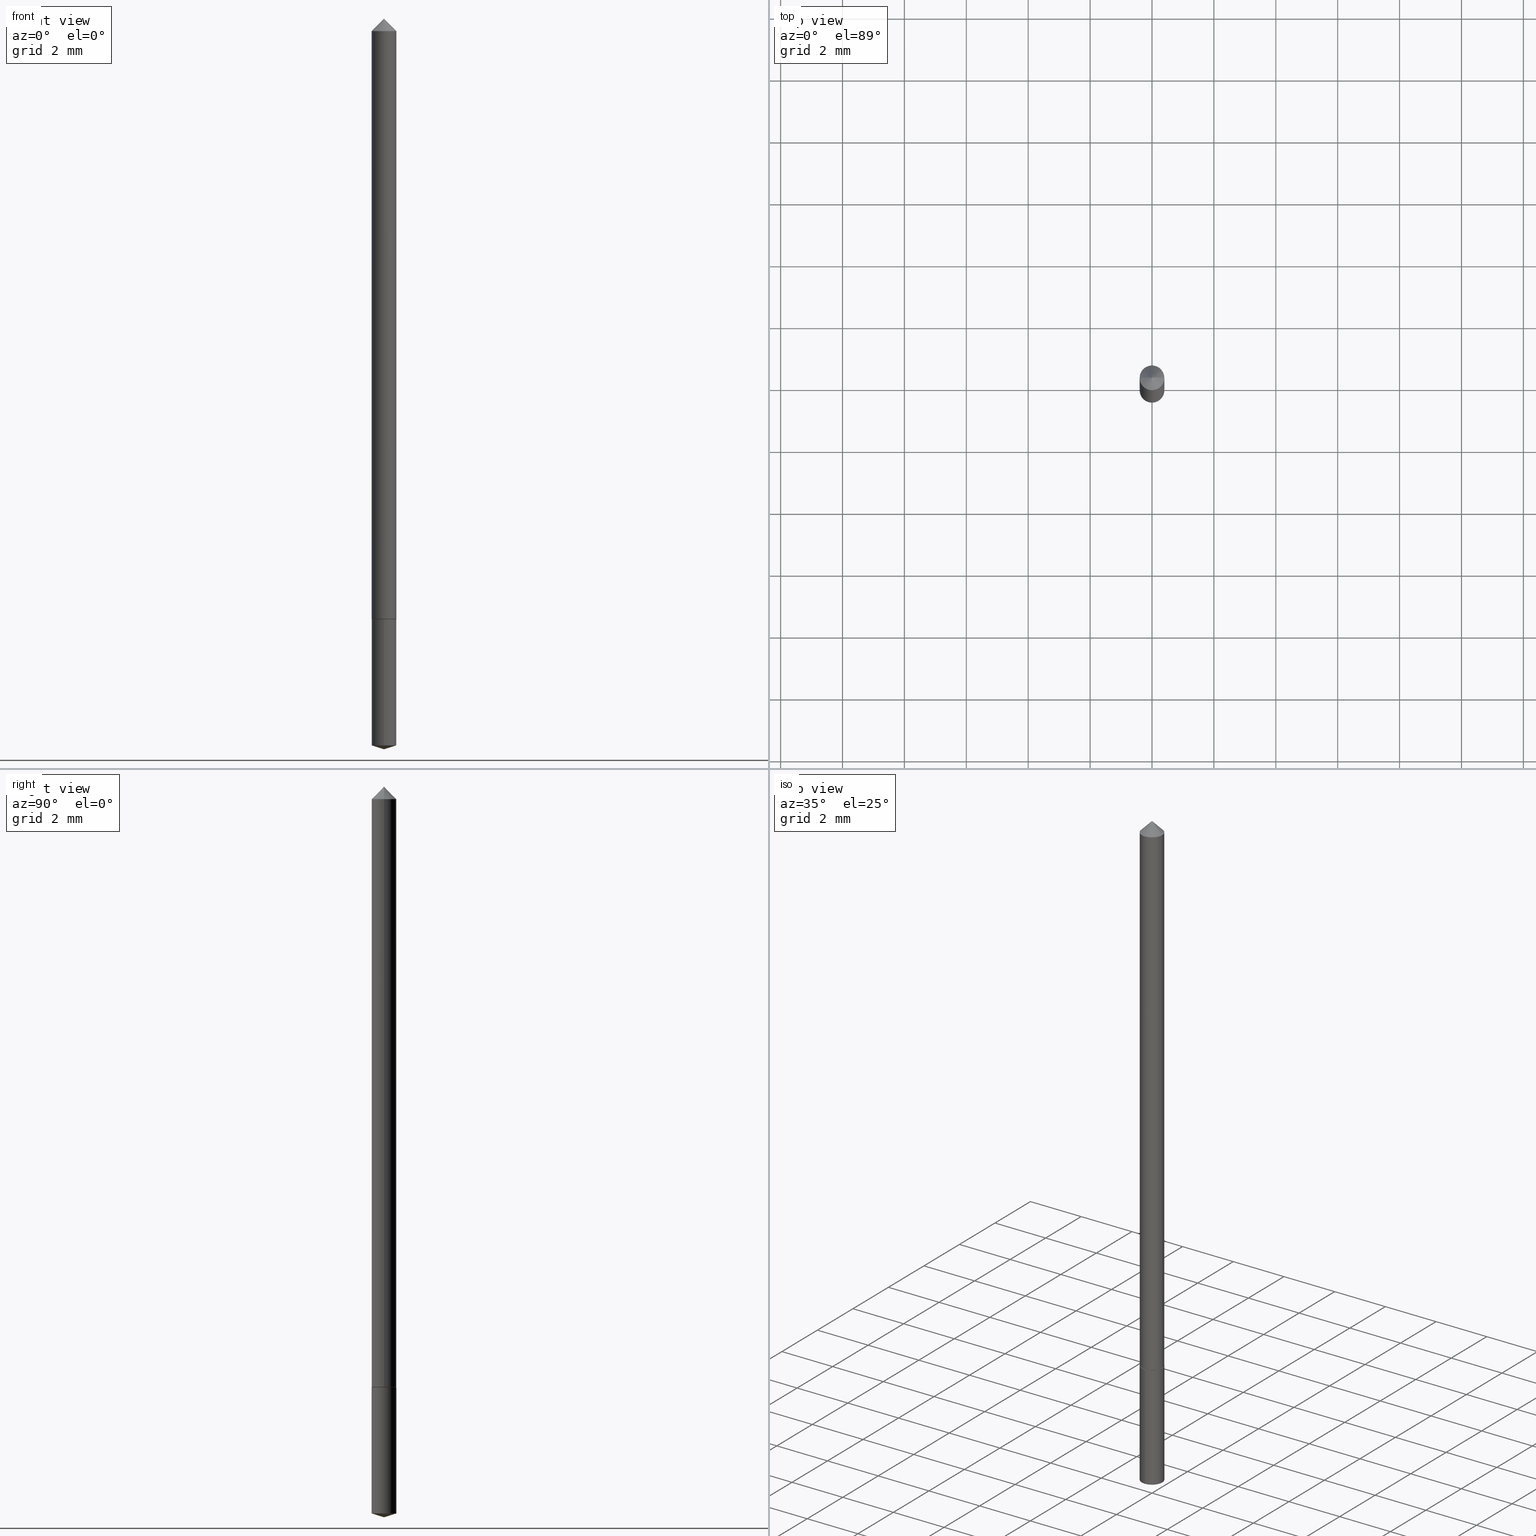
[diagram: canonical four-view strip — front | top / right | iso, engineering-drawing reading convention]
A machine part, canonical four-view strip (front | top / right | iso — engineering-drawing reading convention). The complete STEP part file that produces these views, byte-faithful:
ISO-10303-21;
HEADER;
FILE_DESCRIPTION (( 'STEP AP203' ),
    '1' );
FILE_NAME ('68649.STEP',
    '2024-04-23T13:23:03',
    ( '' ),
    ( '' ),
    'SwSTEP 2.0',
    'SolidWorks 2023',
    '' );
FILE_SCHEMA (( 'CONFIG_CONTROL_DESIGN' ));
ENDSEC;

DATA;
#1 = PERSON_AND_ORGANIZATION_ROLE ( 'classification_officer' ) ;
#2 = ORIENTED_EDGE ( 'NONE', *, *, #65, .T. ) ;
#3 = ORIENTED_EDGE ( 'NONE', *, *, #207, .F. ) ;
#4 = EDGE_CURVE ( 'NONE', #20, #313, #311, .T. ) ;
#5 = AXIS2_PLACEMENT_3D ( 'NONE', #350, #182, #95 ) ;
#6 = ORIENTED_EDGE ( 'NONE', *, *, #93, .F. ) ;
#7 = ORIENTED_EDGE ( 'NONE', *, *, #65, .F. ) ;
#8 = APPROVAL_ROLE ( '' ) ;
#9 = PRODUCT ( '68649', '68649', '', ( #69 ) ) ;
#10 = EDGE_LOOP ( 'NONE', ( #121, #169, #284, #290 ) ) ;
#11 = APPROVAL_PERSON_ORGANIZATION ( #262, #193, #308 ) ;
#12 = ADVANCED_FACE ( 'NONE', ( #204 ), #191, .T. ) ;
#13 = DIRECTION ( 'NONE',  ( 1.000000000000000000, 0.000000000000000000, 0.000000000000000000 ) ) ;
#14 = DIRECTION ( 'NONE',  ( -2.445468806185136877E-29, 3.491481338843145188E-15, 1.000000000000000000 ) ) ;
#15 = ADVANCED_FACE ( 'NONE', ( #66 ), #113, .T. ) ;
#16 = DESIGN_CONTEXT ( 'detailed design', #96, 'design' ) ;
#17 = VECTOR ( 'NONE', #106, 39.37007874015748143 ) ;
#18 = DIRECTION ( 'NONE',  ( -2.445242383942665067E-29, 3.491805588381518378E-15, 1.000000000000000000 ) ) ;
#19 = CARTESIAN_POINT ( 'NONE',  ( -1.099816621735396379E-16, -0.01575000000000272016, -0.7794999999999999707 ) ) ;
#20 = VERTEX_POINT ( 'NONE', #116 ) ;
#21 = AXIS2_PLACEMENT_3D ( 'NONE', #362, #214, #78 ) ;
#22 = LINE ( 'NONE', #360, #174 ) ;
#23 = AXIS2_PLACEMENT_3D ( 'NONE', #71, #272, #239 ) ;
#24 = DIRECTION ( 'NONE',  ( -6.982962677686265922E-15, -1.000000000000000000, 0.000000000000000000 ) ) ;
#25 = CARTESIAN_POINT ( 'NONE',  ( 1.119104808822387803E-16, 0.01574999999999672148, -0.9399340440751560166 ) ) ;
#26 = PERSON_AND_ORGANIZATION_ROLE ( 'design_supplier' ) ;
#27 = CC_DESIGN_PERSON_AND_ORGANIZATION_ASSIGNMENT ( #163, #310, ( #111 ) ) ;
#28 = AXIS2_PLACEMENT_3D ( 'NONE', #358, #304, #157 ) ;
#29 = CC_DESIGN_APPROVAL ( #252, ( #111 ) ) ;
#30 = SECURITY_CLASSIFICATION_LEVEL ( 'unclassified' ) ;
#31 = APPROVAL_DATE_TIME ( #118, #252 ) ;
#32 = VERTEX_POINT ( 'NONE', #227 ) ;
#33 = ADVANCED_FACE ( 'NONE', ( #232 ), #90, .F. ) ;
#34 = COORDINATED_UNIVERSAL_TIME_OFFSET ( 5, 0, .BEHIND. ) ;
#35 = CARTESIAN_POINT ( 'NONE',  ( -0.01575000000000000358, 8.728703347097300785E-19, -0.03125000000000020123 ) ) ;
#36 = VECTOR ( 'NONE', #192, 39.37007874015748143 ) ;
#37 = CARTESIAN_POINT ( 'NONE',  ( 1.905020200018221761E-29, -2.719863962958810634E-15, -0.7790000000000000258 ) ) ;
#38 = AXIS2_PLACEMENT_3D ( 'NONE', #275, #247, #221 ) ;
#39 = ORIENTED_EDGE ( 'NONE', *, *, #289, .F. ) ;
#40 = CARTESIAN_POINT ( 'NONE',  ( 7.642090019328600035E-31, -1.091087918388489897E-16, -0.03125000000000020123 ) ) ;
#41 = CARTESIAN_POINT ( 'NONE',  ( 0.000000000000000000, 0.000000000000000000, 0.000000000000000000 ) ) ;
#42 = DIRECTION ( 'NONE',  ( -2.445468806185136597E-29, 3.491481338843145583E-15, 1.000000000000000000 ) ) ;
#43 = CARTESIAN_POINT ( 'NONE',  ( 0.01575000000000005215, -1.099816621735590636E-16, 7.679978421878623957E-31 ) ) ;
#44 = CIRCLE ( 'NONE', #38, 0.01575000000000000011 ) ;
#45 = CYLINDRICAL_SURFACE ( 'NONE', #211, 0.01575000000000000011 ) ;
#46 = ORIENTED_EDGE ( 'NONE', *, *, #218, .T. ) ;
#47 = DIRECTION ( 'NONE',  ( -2.445242383942665067E-29, 3.491805588381518378E-15, 1.000000000000000000 ) ) ;
#48 = DIRECTION ( 'NONE',  ( 6.776566513254257349E-15, 0.9537169507482289310, 0.3007057995042669574 ) ) ;
#49 = ORGANIZATION ( 'UNSPECIFIED', 'UNSPECIFIED', '' ) ;
#50 = LINE ( 'NONE', #162, #203 ) ;
#51 = EDGE_CURVE ( 'NONE', #253, #343, #181, .T. ) ;
#52 = COORDINATED_UNIVERSAL_TIME_OFFSET ( 5, 0, .BEHIND. ) ;
#53 = PERSON_AND_ORGANIZATION ( #254, #49 ) ;
#54 = ADVANCED_FACE ( 'NONE', ( #185 ), #329, .F. ) ;
#55 = DIRECTION ( 'NONE',  ( -2.445468806185136597E-29, 3.491481338843145583E-15, 1.000000000000000000 ) ) ;
#56 = ORIENTED_EDGE ( 'NONE', *, *, #51, .T. ) ;
#57 = COORDINATED_UNIVERSAL_TIME_OFFSET ( 5, 0, .BEHIND. ) ;
#58 = CARTESIAN_POINT ( 'NONE',  ( 1.906242934421314002E-29, -2.721609703628232138E-15, -0.7794999999999999707 ) ) ;
#59 = APPROVAL_DATE_TIME ( #285, #193 ) ;
#60 = ORIENTED_EDGE ( 'NONE', *, *, #355, .F. ) ;
#61 = ORIENTED_EDGE ( 'NONE', *, *, #93, .T. ) ;
#62 = PRODUCT_DEFINITION_SHAPE ( 'NONE', 'NONE',  #111 ) ;
#63 = VERTEX_POINT ( 'NONE', #104 ) ;
#64 = ORIENTED_EDGE ( 'NONE', *, *, #332, .T. ) ;
#65 = EDGE_CURVE ( 'NONE', #140, #313, #94, .T. ) ;
#66 = FACE_OUTER_BOUND ( 'NONE', #347, .T. ) ;
#67 = ADVANCED_BREP_SHAPE_REPRESENTATION ( '68649', ( #186, #189, #306 ), #108 ) ;
#68 = EDGE_LOOP ( 'NONE', ( #201, #196 ) ) ;
#69 = MECHANICAL_CONTEXT ( 'NONE', #219, 'mechanical' ) ;
#70 = CARTESIAN_POINT ( 'NONE',  ( 1.906242934421314002E-29, -2.721609703628232138E-15, -0.7794999999999999707 ) ) ;
#71 = CARTESIAN_POINT ( 'NONE',  ( 1.906242934421314002E-29, -2.721609703628232138E-15, -0.7794999999999999707 ) ) ;
#72 = PERSON_AND_ORGANIZATION ( #254, #49 ) ;
#73 = AXIS2_PLACEMENT_3D ( 'NONE', #126, #246, #349 ) ;
#74 = CARTESIAN_POINT ( 'NONE',  ( 0.000000000000000000, 0.000000000000000000, 0.000000000000000000 ) ) ;
#75 = CARTESIAN_POINT ( 'NONE',  ( 1.905020200018221761E-29, -2.719863962958810634E-15, -0.7790000000000000258 ) ) ;
#76 =( CONVERSION_BASED_UNIT ( 'INCH', #325 ) LENGTH_UNIT ( ) NAMED_UNIT ( #240 ) );
#77 = LINE ( 'NONE', #43, #335 ) ;
#78 = DIRECTION ( 'NONE',  ( 1.000000000000000000, -6.982962677686266711E-15, 0.000000000000000000 ) ) ;
#79 = CARTESIAN_POINT ( 'NONE',  ( 2.298543058821210983E-29, -3.281814195296508762E-15, -0.9399340440751560166 ) ) ;
#80 = EDGE_CURVE ( 'NONE', #32, #102, #98, .T. ) ;
#81 = CARTESIAN_POINT ( 'NONE',  ( 0.01525000000000006212, -2.828099884462947800E-15, -0.7794999999999999707 ) ) ;
#82 = CARTESIAN_POINT ( 'NONE',  ( -0.01575000000000009726, -2.607953482076594164E-15, -0.7790000000000000258 ) ) ;
#83 = EDGE_CURVE ( 'NONE', #309, #230, #287, .T. ) ;
#84 = CIRCLE ( 'NONE', #228, 0.01575000000000000011 ) ;
#85 = LINE ( 'NONE', #135, #36 ) ;
#86 = CONICAL_SURFACE ( 'NONE', #154, 0.01575000000000009726, 0.7853981633975828380 ) ;
#87 = DATE_AND_TIME ( #305, #353 ) ;
#88 = EDGE_LOOP ( 'NONE', ( #283, #250, #2 ) ) ;
#89 = DATE_AND_TIME ( #170, #330 ) ;
#90 = PLANE ( 'NONE',  #97 ) ;
#91 = PERSON_AND_ORGANIZATION_ROLE ( 'creator' ) ;
#92 = ORIENTED_EDGE ( 'NONE', *, *, #355, .T. ) ;
#93 = EDGE_CURVE ( 'NONE', #343, #253, #145, .T. ) ;
#94 = CIRCLE ( 'NONE', #73, 0.01575000000000000358 ) ;
#95 = DIRECTION ( 'NONE',  ( 1.000000000000000000, -6.982962677686256455E-15, 0.000000000000000000 ) ) ;
#96 = APPLICATION_CONTEXT ( 'configuration controlled 3d designs of mechanical parts and assemblies' ) ;
#97 = AXIS2_PLACEMENT_3D ( 'NONE', #58, #342, #286 ) ;
#98 = LINE ( 'NONE', #241, #130 ) ;
#99 = AXIS2_PLACEMENT_3D ( 'NONE', #354, #215, #208 ) ;
#100 = DIRECTION ( 'NONE',  ( 1.000000000000000000, -6.982962677686266711E-15, 4.876176775795935793E-29 ) ) ;
#101 = CARTESIAN_POINT ( 'NONE',  ( 1.906242934421314002E-29, -2.721609703628232138E-15, -0.7794999999999999707 ) ) ;
#102 = VERTEX_POINT ( 'NONE', #129 ) ;
#103 = ORIENTED_EDGE ( 'NONE', *, *, #80, .T. ) ;
#104 = CARTESIAN_POINT ( 'NONE',  ( 1.119104808822387803E-16, 0.01574999999999728006, -0.7794999999999999707 ) ) ;
#105 = EDGE_CURVE ( 'NONE', #63, #267, #117, .T. ) ;
#106 = DIRECTION ( 'NONE',  ( 0.7071067811866426078, -2.468850131083252997E-15, 0.7071067811864524266 ) ) ;
#107 = FACE_OUTER_BOUND ( 'NONE', #10, .T. ) ;
#108 =( GEOMETRIC_REPRESENTATION_CONTEXT ( 3 ) GLOBAL_UNCERTAINTY_ASSIGNED_CONTEXT ( ( #345 ) ) GLOBAL_UNIT_ASSIGNED_CONTEXT ( ( #76, #179, #351 ) ) REPRESENTATION_CONTEXT ( 'NONE', 'WORKASPACE' ) );
#109 = PRODUCT_RELATED_PRODUCT_CATEGORY ( 'detail', '', ( #9 ) ) ;
#110 = DIRECTION ( 'NONE',  ( 0.7071067811865451302, -7.319954787623248157E-15, -0.7071067811865499042 ) ) ;
#111 = PRODUCT_DEFINITION ( 'UNKNOWN', '', #363, #16 ) ;
#112 = APPROVAL_STATUS ( 'not_yet_approved' ) ;
#113 = CYLINDRICAL_SURFACE ( 'NONE', #339, 0.01575000000000005215 ) ;
#114 = EDGE_CURVE ( 'NONE', #102, #288, #84, .T. ) ;
#115 = APPROVAL_STATUS ( 'not_yet_approved' ) ;
#116 = CARTESIAN_POINT ( 'NONE',  ( 3.753218070327473241E-31, -5.465152481333162299E-17, -0.01550000000000009183 ) ) ;
#117 = CIRCLE ( 'NONE', #303, 0.01575000000000000011 ) ;
#118 = DATE_AND_TIME ( #197, #138 ) ;
#119 = EDGE_LOOP ( 'NONE', ( #46, #64, #6, #205 ) ) ;
#120 = DATE_AND_TIME ( #340, #155 ) ;
#121 = ORIENTED_EDGE ( 'NONE', *, *, #332, .F. ) ;
#122 = ORIENTED_EDGE ( 'NONE', *, *, #4, .T. ) ;
#123 = LINE ( 'NONE', #319, #243 ) ;
#124 = ADVANCED_FACE ( 'NONE', ( #107 ), #86, .T. ) ;
#125 = ORIENTED_EDGE ( 'NONE', *, *, #289, .T. ) ;
#126 = CARTESIAN_POINT ( 'NONE',  ( 7.642090019328600035E-31, -1.091087918388489897E-16, -0.03125000000000020123 ) ) ;
#127 = DIRECTION ( 'NONE',  ( -2.445242383942665067E-29, 3.491805588381518378E-15, 1.000000000000000000 ) ) ;
#128 = AXIS2_PLACEMENT_3D ( 'NONE', #153, #244, #326 ) ;
#129 = CARTESIAN_POINT ( 'NONE',  ( -1.099816621735357305E-16, -0.01575000000000328568, -0.9399340440751560166 ) ) ;
#130 = VECTOR ( 'NONE', #324, 39.37007874015748143 ) ;
#131 = ORIENTED_EDGE ( 'NONE', *, *, #105, .T. ) ;
#132 = LINE ( 'NONE', #216, #158 ) ;
#133 = FACE_OUTER_BOUND ( 'NONE', #176, .T. ) ;
#134 = CARTESIAN_POINT ( 'NONE',  ( -0.01575000000000009726, -2.607953482076594164E-15, -0.7790000000000000258 ) ) ;
#135 = CARTESIAN_POINT ( 'NONE',  ( -0.01575000000000005215, 1.119104808822161498E-16, -7.747322767151501157E-31 ) ) ;
#136 = DIRECTION ( 'NONE',  ( -2.445242383942665067E-29, 3.491805588381518378E-15, 1.000000000000000000 ) ) ;
#137 = CARTESIAN_POINT ( 'NONE',  ( 1.905020200018221761E-29, -2.719863962958810634E-15, -0.7790000000000000258 ) ) ;
#138 = LOCAL_TIME ( 9, 23, 3.000000000000000000, #279 ) ;
#139 = CALENDAR_DATE ( 2024, 23, 4 ) ;
#140 = VERTEX_POINT ( 'NONE', #235 ) ;
#141 = EDGE_CURVE ( 'NONE', #343, #140, #77, .T. ) ;
#142 = APPROVAL_ROLE ( '' ) ;
#143 = DIRECTION ( 'NONE',  ( 1.000000000000000000, -6.982962677686266711E-15, 4.876176775795935793E-29 ) ) ;
#144 = ORIENTED_EDGE ( 'NONE', *, *, #341, .T. ) ;
#145 = CIRCLE ( 'NONE', #320, 0.01575000000000009726 ) ;
#146 = APPROVAL_PERSON_ORGANIZATION ( #166, #167, #142 ) ;
#147 = CONICAL_SURFACE ( 'NONE', #160, 0.01575000000000000358, 0.7853981633974449483 ) ;
#148 = DIRECTION ( 'NONE',  ( -2.445468806185136597E-29, 3.491481338843145583E-15, 1.000000000000000000 ) ) ;
#149 = DIRECTION ( 'NONE',  ( -0.7071067811865451302, 2.468850131082231817E-15, -0.7071067811865499042 ) ) ;
#150 = ORIENTED_EDGE ( 'NONE', *, *, #141, .T. ) ;
#151 = CARTESIAN_POINT ( 'NONE',  ( -9.395869916986768398E-28, 1.341735066119557652E-13, 38.42517874015748447 ) ) ;
#152 = ADVANCED_FACE ( 'NONE', ( #317 ), #177, .T. ) ;
#153 = CARTESIAN_POINT ( 'NONE',  ( 7.642090019328600035E-31, -1.091087918388489897E-16, -0.03125000000000020123 ) ) ;
#154 = AXIS2_PLACEMENT_3D ( 'NONE', #137, #361, #270 ) ;
#155 = LOCAL_TIME ( 9, 23, 3.000000000000000000, #52 ) ;
#156 = FACE_OUTER_BOUND ( 'NONE', #307, .T. ) ;
#157 = DIRECTION ( 'NONE',  ( -6.982962677686265922E-15, -1.000000000000000000, 3.500519750498701277E-15 ) ) ;
#158 = VECTOR ( 'NONE', #48, 39.37007874015748854 ) ;
#159 = SECURITY_CLASSIFICATION ( '', '', #30 ) ;
#160 = AXIS2_PLACEMENT_3D ( 'NONE', #40, #268, #212 ) ;
#161 = DIRECTION ( 'NONE',  ( -2.445242383942665067E-29, 3.491805588381518378E-15, 1.000000000000000000 ) ) ;
#162 = CARTESIAN_POINT ( 'NONE',  ( -1.099816621735396379E-16, -0.01575000000000272016, -0.7794999999999999707 ) ) ;
#163 = PERSON_AND_ORGANIZATION ( #254, #49 ) ;
#164 = ADVANCED_FACE ( 'NONE', ( #238 ), #147, .T. ) ;
#165 = VECTOR ( 'NONE', #300, 39.37007874015748143 ) ;
#166 = PERSON_AND_ORGANIZATION ( #254, #49 ) ;
#167 = APPROVAL ( #112, 'UNSPECIFIED' ) ;
#168 = EDGE_LOOP ( 'NONE', ( #172, #131 ) ) ;
#169 = ORIENTED_EDGE ( 'NONE', *, *, #83, .T. ) ;
#170 = CALENDAR_DATE ( 2024, 23, 4 ) ;
#171 = ADVANCED_FACE ( 'NONE', ( #209 ), #180, .T. ) ;
#172 = ORIENTED_EDGE ( 'NONE', *, *, #282, .T. ) ;
#173 = CLOSED_SHELL ( 'NONE', ( #226, #171, #12, #33, #124, #15, #164 ) ) ;
#174 = VECTOR ( 'NONE', #110, 39.37007874015748143 ) ;
#175 = AXIS2_PLACEMENT_3D ( 'NONE', #74, #42, #100 ) ;
#176 = EDGE_LOOP ( 'NONE', ( #3, #336, #144, #356 ) ) ;
#177 = CYLINDRICAL_SURFACE ( 'NONE', #323, 0.01575000000000000011 ) ;
#178 = ORIENTED_EDGE ( 'NONE', *, *, #312, .F. ) ;
#179 =( NAMED_UNIT ( * ) PLANE_ANGLE_UNIT ( ) SI_UNIT ( $, .RADIAN. ) );
#180 = CYLINDRICAL_SURFACE ( 'NONE', #175, 0.01575000000000005215 ) ;
#181 = CIRCLE ( 'NONE', #257, 0.01575000000000009726 ) ;
#182 = DIRECTION ( 'NONE',  ( -2.445468806185136597E-29, 3.491481338843145583E-15, 1.000000000000000000 ) ) ;
#183 = DIRECTION ( 'NONE',  ( 1.000000000000000000, -6.982962677686273810E-15, 0.000000000000000000 ) ) ;
#184 =( LENGTH_UNIT ( ) NAMED_UNIT ( * ) SI_UNIT ( $, .METRE. ) );
#185 = FACE_OUTER_BOUND ( 'NONE', #168, .T. ) ;
#186 = MANIFOLD_SOLID_BREP ( 'Body-Move/Copy2[1]', #245 ) ;
#187 = AXIS2_PLACEMENT_3D ( 'NONE', #151, #127, #242 ) ;
#188 = CARTESIAN_POINT ( 'NONE',  ( 1.906242934421314002E-29, -2.721609703628232138E-15, -0.7794999999999999707 ) ) ;
#189 = MANIFOLD_SOLID_BREP ( 'Body-Move/Copy2[2]', #173 ) ;
#190 = CIRCLE ( 'NONE', #5, 0.01525000000000006212 ) ;
#191 = CONICAL_SURFACE ( 'NONE', #277, 0.01575000000000009726, 0.7853981633975828380 ) ;
#192 = DIRECTION ( 'NONE',  ( -2.445468806185136877E-29, 3.491481338843145188E-15, 1.000000000000000000 ) ) ;
#193 = APPROVAL ( #115, 'UNSPECIFIED' ) ;
#194 = DATE_TIME_ROLE ( 'classification_date' ) ;
#195 = DIRECTION ( 'NONE',  ( -2.445468806185136597E-29, 3.491481338843145583E-15, 1.000000000000000000 ) ) ;
#196 = ORIENTED_EDGE ( 'NONE', *, *, #83, .F. ) ;
#197 = CALENDAR_DATE ( 2024, 23, 4 ) ;
#198 = EDGE_LOOP ( 'NONE', ( #318, #224, #269, #260 ) ) ;
#199 = ORIENTED_EDGE ( 'NONE', *, *, #295, .T. ) ;
#200 = DATE_TIME_ROLE ( 'creation_date' ) ;
#201 = ORIENTED_EDGE ( 'NONE', *, *, #218, .F. ) ;
#202 = CONICAL_SURFACE ( 'NONE', #128, 0.01575000000000000358, 0.7853981633974449483 ) ;
#203 = VECTOR ( 'NONE', #136, 39.37007874015748143 ) ;
#204 = FACE_OUTER_BOUND ( 'NONE', #119, .T. ) ;
#205 = ORIENTED_EDGE ( 'NONE', *, *, #265, .F. ) ;
#206 = DIRECTION ( 'NONE',  ( -6.982962677686265922E-15, -1.000000000000000000, 0.000000000000000000 ) ) ;
#207 = EDGE_CURVE ( 'NONE', #288, #63, #123, .T. ) ;
#208 = DIRECTION ( 'NONE',  ( 1.000000000000000000, -6.982962677686256455E-15, 0.000000000000000000 ) ) ;
#209 = FACE_OUTER_BOUND ( 'NONE', #281, .T. ) ;
#210 = PERSON_AND_ORGANIZATION_ROLE ( 'design_owner' ) ;
#211 = AXIS2_PLACEMENT_3D ( 'NONE', #188, #161, #334 ) ;
#212 = DIRECTION ( 'NONE',  ( -1.000000000000000000, 6.982962677686266711E-15, 0.000000000000000000 ) ) ;
#213 = DIRECTION ( 'NONE',  ( -2.445242383942665067E-29, 3.491805588381518378E-15, 1.000000000000000000 ) ) ;
#214 = DIRECTION ( 'NONE',  ( -2.445468806185136597E-29, 3.491481338843145583E-15, 1.000000000000000000 ) ) ;
#215 = DIRECTION ( 'NONE',  ( -2.445468806185136597E-29, 3.491481338843145583E-15, 1.000000000000000000 ) ) ;
#216 = CARTESIAN_POINT ( 'NONE',  ( 2.310865616189023751E-29, -3.298901595431373332E-15, -0.9448999999999999622 ) ) ;
#217 = CARTESIAN_POINT ( 'NONE',  ( -0.01525000000000006212, -2.610602709250705365E-15, -0.7794999999999999707 ) ) ;
#218 = EDGE_CURVE ( 'NONE', #230, #309, #190, .T. ) ;
#219 = APPLICATION_CONTEXT ( 'configuration controlled 3d designs of mechanical parts and assemblies' ) ;
#220 = CARTESIAN_POINT ( 'NONE',  ( -0.01575000000000000358, -1.302575896516612017E-15, -0.03125000000000020123 ) ) ;
#221 = DIRECTION ( 'NONE',  ( -6.982962677686265922E-15, -1.000000000000000000, 0.000000000000000000 ) ) ;
#222 = CIRCLE ( 'NONE', #21, 0.01575000000000000358 ) ;
#223 = CC_DESIGN_PERSON_AND_ORGANIZATION_ASSIGNMENT ( #271, #210, ( #9 ) ) ;
#224 = ORIENTED_EDGE ( 'NONE', *, *, #207, .T. ) ;
#225 = SHAPE_DEFINITION_REPRESENTATION ( #62, #67 ) ;
#226 = ADVANCED_FACE ( 'NONE', ( #296 ), #202, .T. ) ;
#227 = CARTESIAN_POINT ( 'NONE',  ( 2.310509528587424031E-29, -3.299407100461696853E-15, -0.9448999999999999622 ) ) ;
#228 = AXIS2_PLACEMENT_3D ( 'NONE', #79, #47, #24 ) ;
#229 = LOCAL_TIME ( 9, 23, 3.000000000000000000, #337 ) ;
#230 = VERTEX_POINT ( 'NONE', #81 ) ;
#231 = CARTESIAN_POINT ( 'NONE',  ( 0.000000000000000000, 0.000000000000000000, 0.000000000000000000 ) ) ;
#232 = FACE_OUTER_BOUND ( 'NONE', #68, .T. ) ;
#233 = ORIENTED_EDGE ( 'NONE', *, *, #141, .F. ) ;
#234 = EDGE_CURVE ( 'NONE', #288, #102, #44, .T. ) ;
#235 = CARTESIAN_POINT ( 'NONE',  ( 0.01575000000000000358, -2.190904540124077205E-16, -0.03125000000000020123 ) ) ;
#236 = APPLICATION_PROTOCOL_DEFINITION ( 'international standard', 'config_control_design', 1994, #219 ) ;
#237 = CC_DESIGN_PERSON_AND_ORGANIZATION_ASSIGNMENT ( #258, #1, ( #159 ) ) ;
#238 = FACE_OUTER_BOUND ( 'NONE', #294, .T. ) ;
#239 = DIRECTION ( 'NONE',  ( 6.982962677686265922E-15, 1.000000000000000000, -3.491805588381518378E-15 ) ) ;
#240 = DIMENSIONAL_EXPONENTS ( 1.000000000000000000, 0.000000000000000000, 0.000000000000000000, 0.000000000000000000, 0.000000000000000000, 0.000000000000000000, 0.000000000000000000 ) ;
#241 = CARTESIAN_POINT ( 'NONE',  ( 2.310509528587424311E-29, -3.299407100461696064E-15, -0.9448999999999999622 ) ) ;
#242 = DIRECTION ( 'NONE',  ( -6.982962677686265922E-15, -1.000000000000000000, 3.500519750498701277E-15 ) ) ;
#243 = VECTOR ( 'NONE', #348, 39.37007874015748143 ) ;
#244 = DIRECTION ( 'NONE',  ( 2.445468806185136597E-29, -3.491481338843145583E-15, -1.000000000000000000 ) ) ;
#245 = CLOSED_SHELL ( 'NONE', ( #152, #299, #359, #274, #54 ) ) ;
#246 = DIRECTION ( 'NONE',  ( -2.445468806185136597E-29, 3.491481338843145583E-15, 1.000000000000000000 ) ) ;
#247 = DIRECTION ( 'NONE',  ( -2.445242383942665067E-29, 3.491805588381518378E-15, 1.000000000000000000 ) ) ;
#248 = DIRECTION ( 'NONE',  ( -6.982962677686265922E-15, -1.000000000000000000, 0.000000000000000000 ) ) ;
#249 = CC_DESIGN_APPROVAL ( #167, ( #159 ) ) ;
#250 = ORIENTED_EDGE ( 'NONE', *, *, #312, .T. ) ;
#251 = CARTESIAN_POINT ( 'NONE',  ( 1.906242934421314002E-29, -2.721609703628232138E-15, -0.7794999999999999707 ) ) ;
#252 = APPROVAL ( #344, 'UNSPECIFIED' ) ;
#253 = VERTEX_POINT ( 'NONE', #134 ) ;
#254 = PERSON ( 'UNSPECIFIED', 'UNSPECIFIED', 'UNSPECIFIED', ('UNSPECIFIED'), ('UNSPECIFIED'), ('UNSPECIFIED') ) ;
#255 = CARTESIAN_POINT ( 'NONE',  ( 0.01575000000000009726, -2.829845625132370092E-15, -0.7790000000000000258 ) ) ;
#256 = APPROVAL_DATE_TIME ( #87, #167 ) ;
#257 = AXIS2_PLACEMENT_3D ( 'NONE', #37, #148, #263 ) ;
#258 = PERSON_AND_ORGANIZATION ( #254, #49 ) ;
#259 = CARTESIAN_POINT ( 'NONE',  ( 1.905020200018221761E-29, -2.719863962958810634E-15, -0.7790000000000000258 ) ) ;
#260 = ORIENTED_EDGE ( 'NONE', *, *, #341, .F. ) ;
#261 = CC_DESIGN_SECURITY_CLASSIFICATION ( #159, ( #363 ) ) ;
#262 = PERSON_AND_ORGANIZATION ( #254, #49 ) ;
#263 = DIRECTION ( 'NONE',  ( 1.000000000000000000, -6.982962677686273810E-15, 0.000000000000000000 ) ) ;
#264 = ORIENTED_EDGE ( 'NONE', *, *, #295, .F. ) ;
#265 = EDGE_CURVE ( 'NONE', #230, #343, #331, .T. ) ;
#266 = DIRECTION ( 'NONE',  ( 1.000000000000000000, -6.982962677686273810E-15, 0.000000000000000000 ) ) ;
#267 = VERTEX_POINT ( 'NONE', #19 ) ;
#268 = DIRECTION ( 'NONE',  ( 2.445468806185136597E-29, -3.491481338843145583E-15, -1.000000000000000000 ) ) ;
#269 = ORIENTED_EDGE ( 'NONE', *, *, #282, .F. ) ;
#270 = DIRECTION ( 'NONE',  ( 1.000000000000000000, -6.982962677686273810E-15, 0.000000000000000000 ) ) ;
#271 = PERSON_AND_ORGANIZATION ( #254, #49 ) ;
#272 = DIRECTION ( 'NONE',  ( 2.445242383942664787E-29, -3.491805588381518378E-15, -1.000000000000000000 ) ) ;
#273 = VECTOR ( 'NONE', #149, 39.37007874015748143 ) ;
#274 = ADVANCED_FACE ( 'NONE', ( #133 ), #45, .T. ) ;
#275 = CARTESIAN_POINT ( 'NONE',  ( 2.298543058821210983E-29, -3.281814195296508762E-15, -0.9399340440751560166 ) ) ;
#276 = CARTESIAN_POINT ( 'NONE',  ( 0.01575000000000009726, -2.829845625132370092E-15, -0.7790000000000000258 ) ) ;
#277 = AXIS2_PLACEMENT_3D ( 'NONE', #259, #195, #266 ) ;
#278 = CONICAL_SURFACE ( 'NONE', #187, 124.8659371009151755, 1.265363707695891904 ) ;
#279 = COORDINATED_UNIVERSAL_TIME_OFFSET ( 5, 0, .BEHIND. ) ;
#280 = CONICAL_SURFACE ( 'NONE', #28, 124.8659371009151755, 1.265363707695891904 ) ;
#281 = EDGE_LOOP ( 'NONE', ( #61, #199, #7, #233 ) ) ;
#282 = EDGE_CURVE ( 'NONE', #267, #63, #301, .T. ) ;
#283 = ORIENTED_EDGE ( 'NONE', *, *, #4, .F. ) ;
#284 = ORIENTED_EDGE ( 'NONE', *, *, #265, .T. ) ;
#285 = DATE_AND_TIME ( #139, #229 ) ;
#286 = DIRECTION ( 'NONE',  ( 1.000000000000000000, -6.982962677686265922E-15, 4.876176775795935793E-29 ) ) ;
#287 = CIRCLE ( 'NONE', #99, 0.01525000000000006212 ) ;
#288 = VERTEX_POINT ( 'NONE', #25 ) ;
#289 = EDGE_CURVE ( 'NONE', #32, #288, #132, .T. ) ;
#290 = ORIENTED_EDGE ( 'NONE', *, *, #51, .F. ) ;
#291 = DIRECTION ( 'NONE',  ( 0.000000000000000000, 0.000000000000000000, 1.000000000000000000 ) ) ;
#292 = DIRECTION ( 'NONE',  ( -2.445242383942665067E-29, 3.491805588381518378E-15, 1.000000000000000000 ) ) ;
#293 = CC_DESIGN_DATE_AND_TIME_ASSIGNMENT ( #89, #194, ( #159 ) ) ;
#294 = EDGE_LOOP ( 'NONE', ( #178, #122, #92 ) ) ;
#295 = EDGE_CURVE ( 'NONE', #253, #313, #85, .T. ) ;
#296 = FACE_OUTER_BOUND ( 'NONE', #88, .T. ) ;
#297 = DIRECTION ( 'NONE',  ( -6.982962677686265922E-15, -1.000000000000000000, 0.000000000000000000 ) ) ;
#298 = FACE_OUTER_BOUND ( 'NONE', #338, .T. ) ;
#299 = ADVANCED_FACE ( 'NONE', ( #298 ), #280, .T. ) ;
#300 = DIRECTION ( 'NONE',  ( -0.7071067811866426078, 7.493145998870698104E-15, 0.7071067811864524266 ) ) ;
#301 = CIRCLE ( 'NONE', #352, 0.01575000000000000011 ) ;
#302 = CC_DESIGN_APPROVAL ( #193, ( #363 ) ) ;
#303 = AXIS2_PLACEMENT_3D ( 'NONE', #101, #213, #297 ) ;
#304 = DIRECTION ( 'NONE',  ( -2.445242383942665067E-29, 3.491805588381518378E-15, 1.000000000000000000 ) ) ;
#305 = CALENDAR_DATE ( 2024, 23, 4 ) ;
#306 = AXIS2_PLACEMENT_3D ( 'NONE', #41, #291, #13 ) ;
#307 = EDGE_LOOP ( 'NONE', ( #39, #103, #316 ) ) ;
#308 = APPROVAL_ROLE ( '' ) ;
#309 = VERTEX_POINT ( 'NONE', #217 ) ;
#310 = PERSON_AND_ORGANIZATION_ROLE ( 'creator' ) ;
#311 = LINE ( 'NONE', #35, #273 ) ;
#312 = EDGE_CURVE ( 'NONE', #20, #140, #22, .T. ) ;
#313 = VERTEX_POINT ( 'NONE', #220 ) ;
#314 = PERSON_AND_ORGANIZATION ( #254, #49 ) ;
#315 = ORIENTED_EDGE ( 'NONE', *, *, #114, .F. ) ;
#316 = ORIENTED_EDGE ( 'NONE', *, *, #234, .F. ) ;
#317 = FACE_OUTER_BOUND ( 'NONE', #198, .T. ) ;
#318 = ORIENTED_EDGE ( 'NONE', *, *, #114, .T. ) ;
#319 = CARTESIAN_POINT ( 'NONE',  ( 1.119104808822348360E-16, 0.01574999999999728006, -0.7794999999999999707 ) ) ;
#320 = AXIS2_PLACEMENT_3D ( 'NONE', #75, #327, #183 ) ;
#321 = APPLICATION_PROTOCOL_DEFINITION ( 'international standard', 'config_control_design', 1994, #96 ) ;
#322 = APPROVAL_PERSON_ORGANIZATION ( #72, #252, #8 ) ;
#323 = AXIS2_PLACEMENT_3D ( 'NONE', #70, #292, #206 ) ;
#324 = DIRECTION ( 'NONE',  ( -6.659769872151632089E-15, -0.9537169507482267106, 0.3007057995042736187 ) ) ;
#325 = LENGTH_MEASURE_WITH_UNIT ( LENGTH_MEASURE( 0.02539999999999999897 ), #184 );
#326 = DIRECTION ( 'NONE',  ( -1.000000000000000000, 6.982962677686266711E-15, 0.000000000000000000 ) ) ;
#327 = DIRECTION ( 'NONE',  ( -2.445468806185136597E-29, 3.491481338843145583E-15, 1.000000000000000000 ) ) ;
#328 = CC_DESIGN_DATE_AND_TIME_ASSIGNMENT ( #120, #200, ( #111 ) ) ;
#329 = PLANE ( 'NONE',  #23 ) ;
#330 = LOCAL_TIME ( 9, 23, 3.000000000000000000, #57 ) ;
#331 = LINE ( 'NONE', #276, #17 ) ;
#332 = EDGE_CURVE ( 'NONE', #309, #253, #333, .T. ) ;
#333 = LINE ( 'NONE', #82, #165 ) ;
#334 = DIRECTION ( 'NONE',  ( -6.982962677686265922E-15, -1.000000000000000000, 0.000000000000000000 ) ) ;
#335 = VECTOR ( 'NONE', #14, 39.37007874015748143 ) ;
#336 = ORIENTED_EDGE ( 'NONE', *, *, #234, .T. ) ;
#337 = COORDINATED_UNIVERSAL_TIME_OFFSET ( 5, 0, .BEHIND. ) ;
#338 = EDGE_LOOP ( 'NONE', ( #346, #125, #315 ) ) ;
#339 = AXIS2_PLACEMENT_3D ( 'NONE', #231, #55, #143 ) ;
#340 = CALENDAR_DATE ( 2024, 23, 4 ) ;
#341 = EDGE_CURVE ( 'NONE', #102, #267, #50, .T. ) ;
#342 = DIRECTION ( 'NONE',  ( -2.438088387897960049E-29, 3.491481338843145188E-15, 1.000000000000000000 ) ) ;
#343 = VERTEX_POINT ( 'NONE', #255 ) ;
#344 = APPROVAL_STATUS ( 'not_yet_approved' ) ;
#345 = UNCERTAINTY_MEASURE_WITH_UNIT (LENGTH_MEASURE( 1.000000000000000082E-05 ), #76, 'distance_accuracy_value', 'NONE');
#346 = ORIENTED_EDGE ( 'NONE', *, *, #80, .F. ) ;
#347 = EDGE_LOOP ( 'NONE', ( #264, #56, #150, #60 ) ) ;
#348 = DIRECTION ( 'NONE',  ( -2.445242383942665067E-29, 3.491805588381518378E-15, 1.000000000000000000 ) ) ;
#349 = DIRECTION ( 'NONE',  ( 1.000000000000000000, -6.982962677686266711E-15, 0.000000000000000000 ) ) ;
#350 = CARTESIAN_POINT ( 'NONE',  ( 1.906242934421314002E-29, -2.721609703628232138E-15, -0.7794999999999999707 ) ) ;
#351 =( NAMED_UNIT ( * ) SI_UNIT ( $, .STERADIAN. ) SOLID_ANGLE_UNIT ( ) );
#352 = AXIS2_PLACEMENT_3D ( 'NONE', #251, #18, #248 ) ;
#353 = LOCAL_TIME ( 9, 23, 3.000000000000000000, #34 ) ;
#354 = CARTESIAN_POINT ( 'NONE',  ( 1.906242934421314002E-29, -2.721609703628232138E-15, -0.7794999999999999707 ) ) ;
#355 = EDGE_CURVE ( 'NONE', #313, #140, #222, .T. ) ;
#356 = ORIENTED_EDGE ( 'NONE', *, *, #105, .F. ) ;
#357 = CC_DESIGN_PERSON_AND_ORGANIZATION_ASSIGNMENT ( #53, #26, ( #363 ) ) ;
#358 = CARTESIAN_POINT ( 'NONE',  ( -9.395869916986768398E-28, 1.341735066119557652E-13, 38.42517874015748447 ) ) ;
#359 = ADVANCED_FACE ( 'NONE', ( #156 ), #278, .T. ) ;
#360 = CARTESIAN_POINT ( 'NONE',  ( 0.01575000000000000358, -2.171616353037506589E-16, -0.03125000000000020123 ) ) ;
#361 = DIRECTION ( 'NONE',  ( -2.445468806185136597E-29, 3.491481338843145583E-15, 1.000000000000000000 ) ) ;
#362 = CARTESIAN_POINT ( 'NONE',  ( 7.642090019328600035E-31, -1.091087918388489897E-16, -0.03125000000000020123 ) ) ;
#363 = PRODUCT_DEFINITION_FORMATION_WITH_SPECIFIED_SOURCE ( 'ANY', '', #9, .NOT_KNOWN. ) ;
#364 = CC_DESIGN_PERSON_AND_ORGANIZATION_ASSIGNMENT ( #314, #91, ( #363 ) ) ;
ENDSEC;
END-ISO-10303-21;
